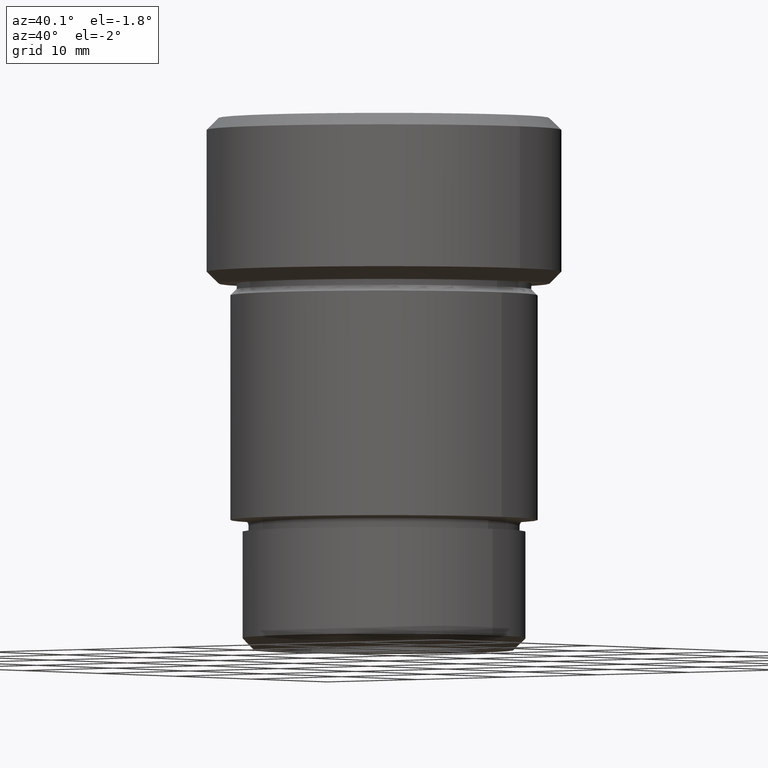
[diagram: clean part render]
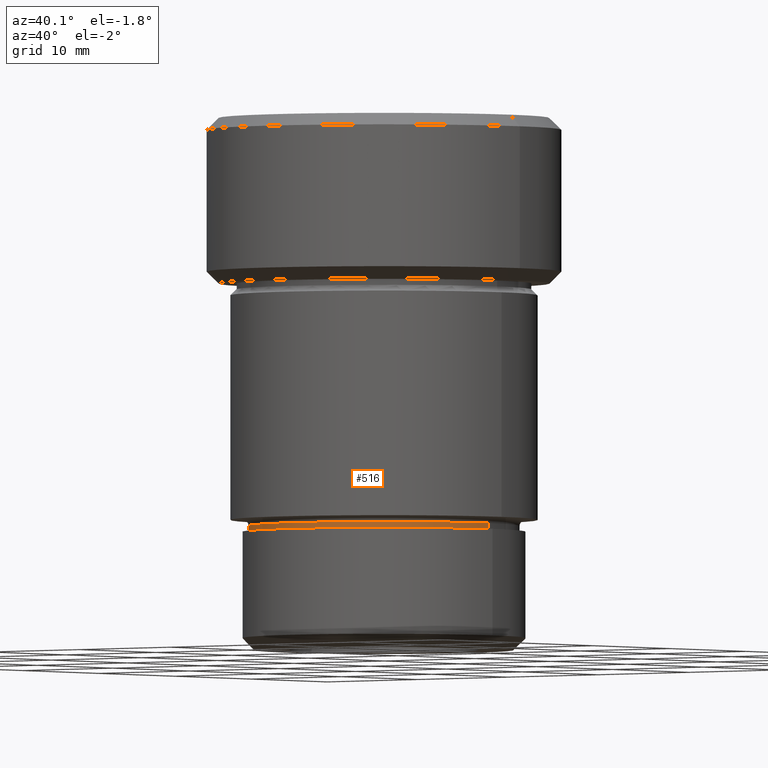
[diagram: same view with one face highlighted and labeled with its STEP entity id]
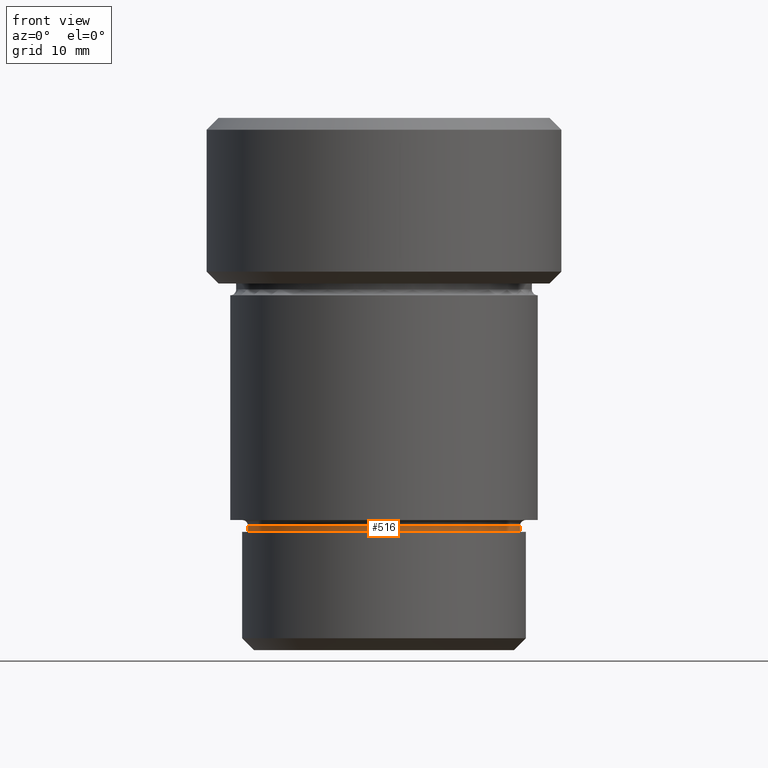
[diagram: same view with one face highlighted and labeled with its STEP entity id]
A machine part, auxiliary view. The second image highlights one B-rep face of the part: STEP entity #516.
A second angle (front view) of the same face is appended — the face is thin or edge-on in the first view.
In plain terms, the highlighted cylindrical surface (partial cylindrical patch) has radius 11.5 mm, axis along (-0, -0, 1).
Its self-contained STEP definition (entity closure, byte-faithful):
#43 = CARTESIAN_POINT ( 'NONE',  ( 0.000000000000000000, 0.000000000000000000, -34.50000000000000000 ) ) ;
#51 = VERTEX_POINT ( 'NONE', #409 ) ;
#55 = DIRECTION ( 'NONE',  ( 1.000000000000000000, 0.000000000000000000, 0.000000000000000000 ) ) ;
#79 = CARTESIAN_POINT ( 'NONE',  ( 11.50000000000000355, 0.000000000000000000, -34.50000000000000000 ) ) ;
#86 = DIRECTION ( 'NONE',  ( -0.000000000000000000, -0.000000000000000000, 1.000000000000000000 ) ) ;
#101 = LINE ( 'NONE', #173, #766 ) ;
#105 = CIRCLE ( 'NONE', #150, 11.50000000000000355 ) ;
#127 = DIRECTION ( 'NONE',  ( 1.000000000000000000, 0.000000000000000000, 0.000000000000000000 ) ) ;
#150 = AXIS2_PLACEMENT_3D ( 'NONE', #43, #232, #291 ) ;
#157 = ORIENTED_EDGE ( 'NONE', *, *, #676, .T. ) ;
#158 = DIRECTION ( 'NONE',  ( -0.000000000000000000, -0.000000000000000000, 1.000000000000000000 ) ) ;
#173 = CARTESIAN_POINT ( 'NONE',  ( 11.50000000000000355, 0.000000000000000000, 0.000000000000000000 ) ) ;
#177 = ORIENTED_EDGE ( 'NONE', *, *, #639, .T. ) ;
#213 = FACE_OUTER_BOUND ( 'NONE', #563, .T. ) ;
#232 = DIRECTION ( 'NONE',  ( 0.000000000000000000, 0.000000000000000000, -1.000000000000000000 ) ) ;
#238 = CARTESIAN_POINT ( 'NONE',  ( 0.000000000000000000, 0.000000000000000000, -35.00000000000000000 ) ) ;
#291 = DIRECTION ( 'NONE',  ( -1.000000000000000000, 0.000000000000000000, 0.000000000000000000 ) ) ;
#329 = CARTESIAN_POINT ( 'NONE',  ( 0.000000000000000000, 0.000000000000000000, 0.000000000000000000 ) ) ;
#332 = VERTEX_POINT ( 'NONE', #666 ) ;
#336 = EDGE_CURVE ( 'NONE', #374, #332, #580, .T. ) ;
#343 = ORIENTED_EDGE ( 'NONE', *, *, #430, .F. ) ;
#349 = CARTESIAN_POINT ( 'NONE',  ( -11.50000000000000355, 1.408343819019456570E-15, 0.000000000000000000 ) ) ;
#374 = VERTEX_POINT ( 'NONE', #726 ) ;
#400 = AXIS2_PLACEMENT_3D ( 'NONE', #329, #86, #127 ) ;
#404 = LINE ( 'NONE', #349, #509 ) ;
#409 = CARTESIAN_POINT ( 'NONE',  ( -11.50000000000000355, 1.408343819019456570E-15, -34.50000000000000000 ) ) ;
#430 = EDGE_CURVE ( 'NONE', #374, #51, #404, .T. ) ;
#458 = VERTEX_POINT ( 'NONE', #79 ) ;
#477 = AXIS2_PLACEMENT_3D ( 'NONE', #238, #649, #55 ) ;
#509 = VECTOR ( 'NONE', #782, 1000.000000000000000 ) ;
#512 = CYLINDRICAL_SURFACE ( 'NONE', #400, 11.50000000000000355 ) ;
#516 = ADVANCED_FACE ( 'NONE', ( #213 ), #512, .T. ) ;
#532 = ORIENTED_EDGE ( 'NONE', *, *, #336, .T. ) ;
#563 = EDGE_LOOP ( 'NONE', ( #343, #532, #177, #157 ) ) ;
#580 = CIRCLE ( 'NONE', #477, 11.50000000000000178 ) ;
#639 = EDGE_CURVE ( 'NONE', #332, #458, #101, .T. ) ;
#649 = DIRECTION ( 'NONE',  ( -0.000000000000000000, -0.000000000000000000, 1.000000000000000000 ) ) ;
#666 = CARTESIAN_POINT ( 'NONE',  ( 11.50000000000000178, 0.000000000000000000, -35.00000000000000000 ) ) ;
#676 = EDGE_CURVE ( 'NONE', #458, #51, #105, .T. ) ;
#726 = CARTESIAN_POINT ( 'NONE',  ( -11.50000000000000178, 1.408343819019456373E-15, -35.00000000000000000 ) ) ;
#766 = VECTOR ( 'NONE', #158, 1000.000000000000000 ) ;
#782 = DIRECTION ( 'NONE',  ( -0.000000000000000000, -0.000000000000000000, 1.000000000000000000 ) ) ;